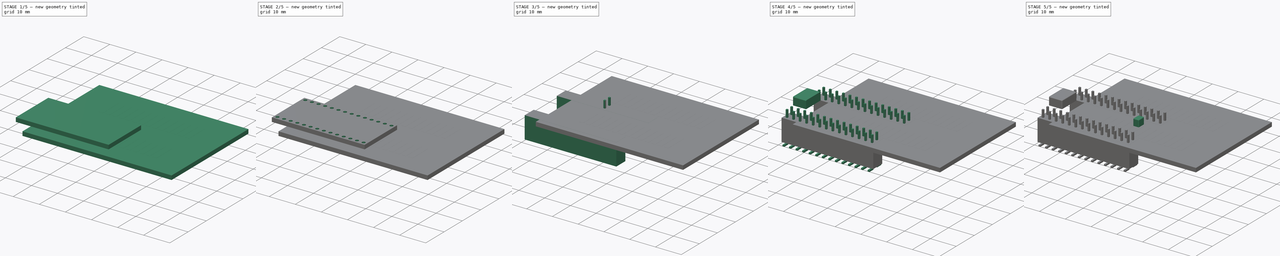
[diagram: build sequence overview — one tinted view per stage of 5, left to right]
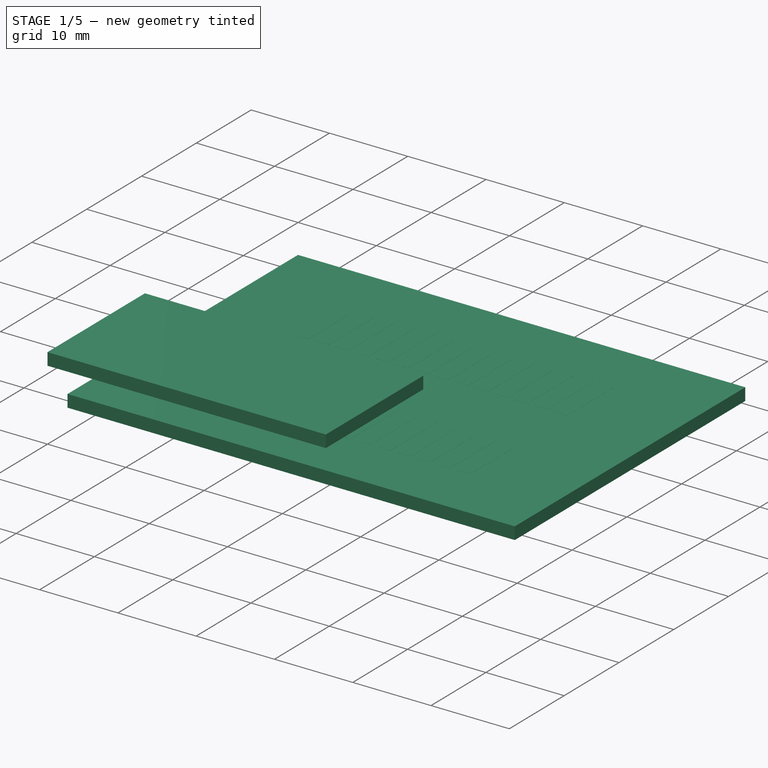
[diagram: stage 1 of 5 — iso view after this stage's code; geometry added in this stage tinted green]
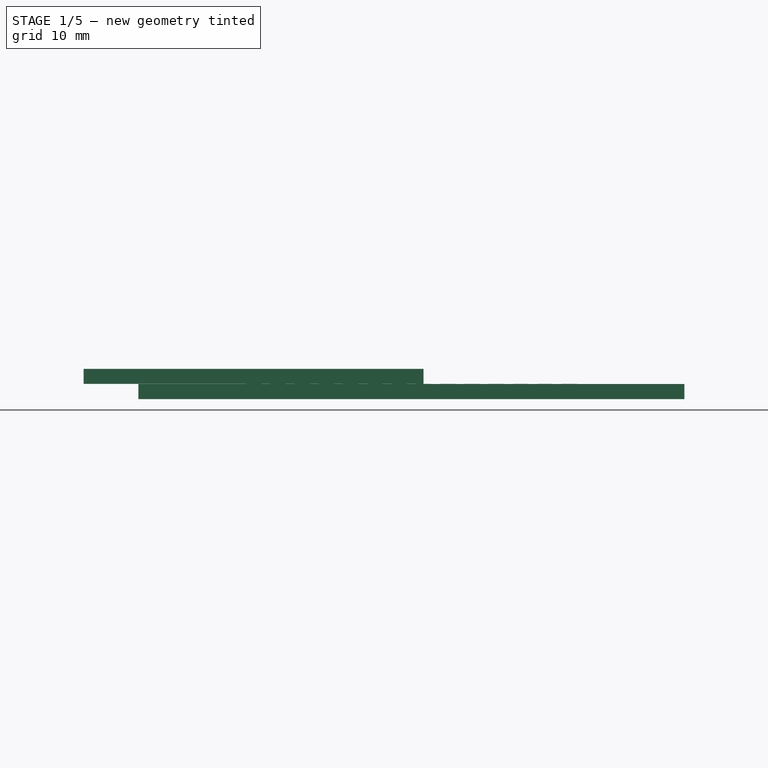
[diagram: stage 1 of 5 — front view after this stage's code; geometry added in this stage tinted green]
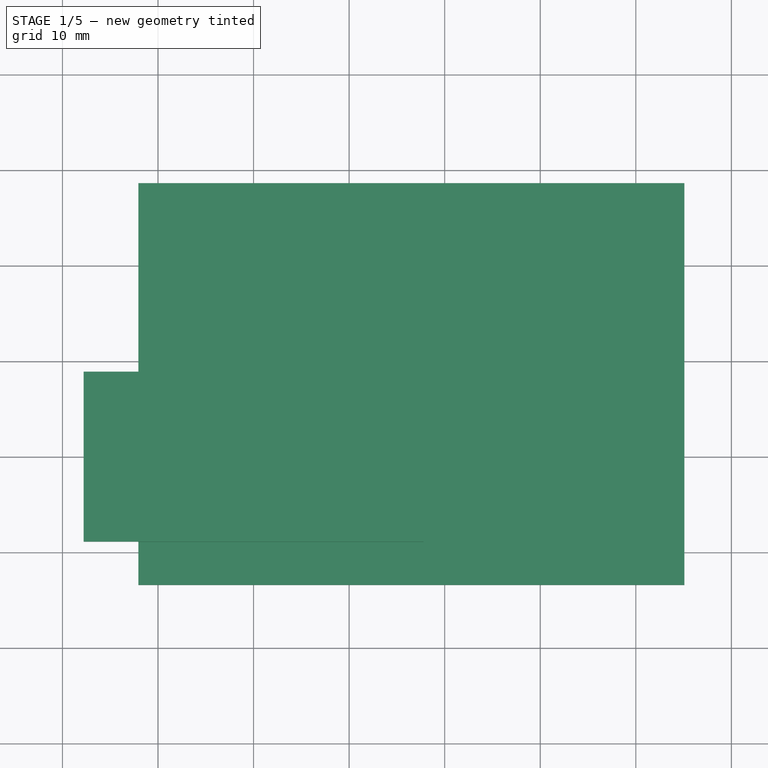
[diagram: stage 1 of 5 — top view after this stage's code; geometry added in this stage tinted green]
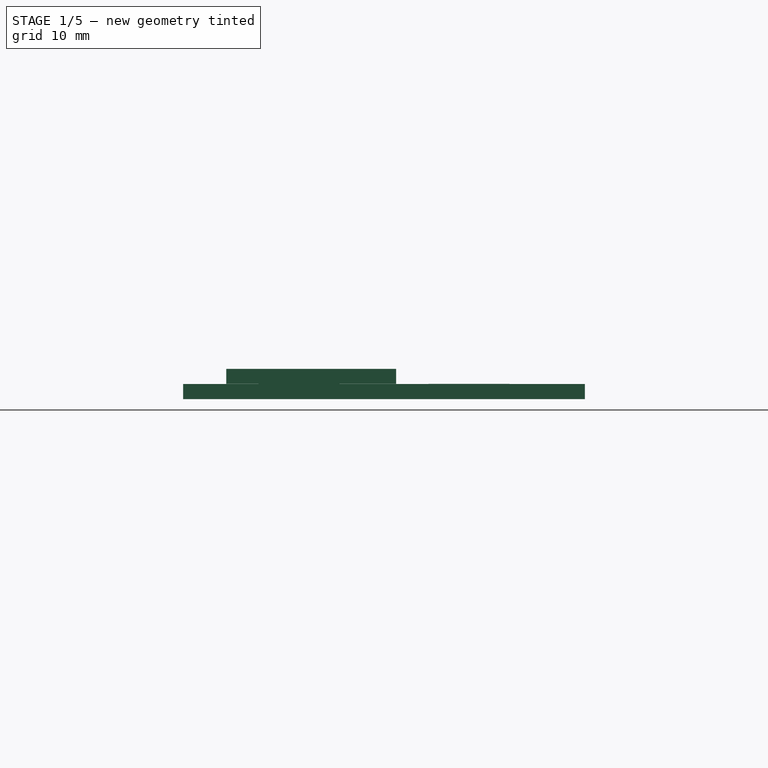
[diagram: stage 1 of 5 — right view after this stage's code; geometry added in this stage tinted green]
FCSTD DOCUMENT  (FreeCAD 0.17R10600 (Git))
Label: Teensy32_HM_FC017
License: All rights reserved
LicenseURL: http://en.wikipedia.org/wiki/All_rights_reserved
objects: Sketcher::SketchObject×6, PartDesign::Pad×6, PartDesign::Body×6, Part::FeaturePython×6, PartDesign::Fillet×4, Part::Feature×4, App::DocumentObjectGroup×2, Part::Cut×1
note: 39 computed .brp shape members not serialized (recipe doc carries the construction recipe); baked Part::Feature solids carry a one-line shape summary decoded from their .brp

FEATURE [Sketcher::SketchObject] Sketch
  MapMode = 5
  Support = -> [XY_Plane]
  sketch-geometry (4):
    g0: LineSegment StartX=-17.78 StartY=-8.89 StartZ=0 EndX=17.78 EndY=-8.89 EndZ=0
    g1: LineSegment StartX=17.78 StartY=-8.89 StartZ=0 EndX=17.78 EndY=8.89 EndZ=0
    g2: LineSegment StartX=17.78 StartY=8.89 StartZ=0 EndX=-17.78 EndY=8.89 EndZ=0
    g3: LineSegment StartX=-17.78 StartY=8.89 StartZ=0 EndX=-17.78 EndY=-8.89 EndZ=0
  constraints (12):
    c: Coincident(g0,g1)
    c: Coincident(g1,g2)
    c: Coincident(g2,g3)
    c: Coincident(g3,g0)
    c: Horizontal(g0)
    c: Horizontal(g2)
    c: Vertical(g1)
    c: Vertical(g3)
    c: Symmetric(g0,g2,g-1)
    c: Symmetric(g2,g1,g-2)
    c: DistanceX(g2,g2) = 35.56
    c: DistanceY(g3,g3) = 17.78
FEATURE [PartDesign::Pad] Pad
  Length = 1.57
  Length2 = 100
  Profile = -> Sketch
  Type = 0
FEATURE [Part::FeaturePython] Filk_lines  label="FrontSilk"  # a2plus imported part (geometry in sourceFile) (typed FeaturePython)
  fixedPosition = true
FEATURE [Part::FeaturePython] TopPads  # a2plus imported part (geometry in sourceFile) (typed FeaturePython)
  fixedPosition = true
FEATURE [Part::FeaturePython] newPCB  label="Pcb"  # a2plus imported part (geometry in sourceFile) (typed FeaturePython)
  fixedPosition = true
FEATURE [App::DocumentObjectGroup] Teensy32_Conn_fp
  Group = -> [Filk_lines,TopPads,newPCB]
FEATURE [Part::Feature] FusionAxisZ1  label="Z"
  shape: bbox 0.8 x 0.8 x 14 mm, 8 faces (baked)
FEATURE [Part::Feature] FusionAxisY1  label="Y"
  Placement = pos=(0,0,0.05) rot=(-1,0,0;1.5708rad)
  shape: bbox 0.8 x 14 x 0.8 mm, 8 faces (baked)
FEATURE [Part::Feature] FusionAxisX1  label="X"
  Placement = pos=(0,-0.05,0) rot=(0,1,0;1.5708rad)
  shape: bbox 14 x 0.8 x 0.8 mm, 8 faces (baked)
FEATURE [App::DocumentObjectGroup] axis
  Group = -> [FusionAxisZ1,FusionAxisY1,FusionAxisX1]
FEATURE [Part::Feature] Shape  label="Fusion"
  shape: bbox 36.26 x 24.48 x 13.9 mm, 1000 faces (baked)
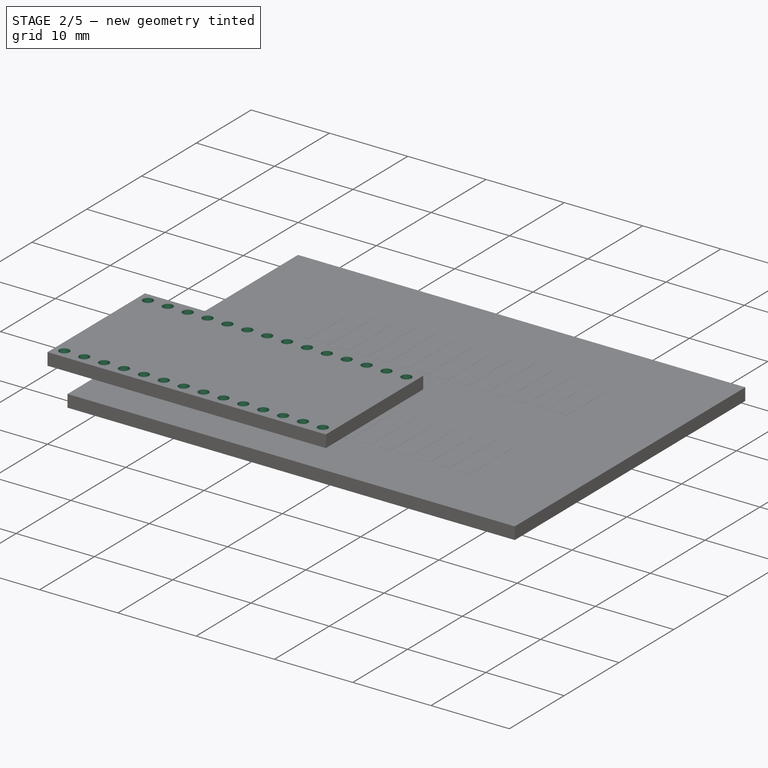
[diagram: stage 2 of 5 — iso view after this stage's code; geometry added in this stage tinted green]
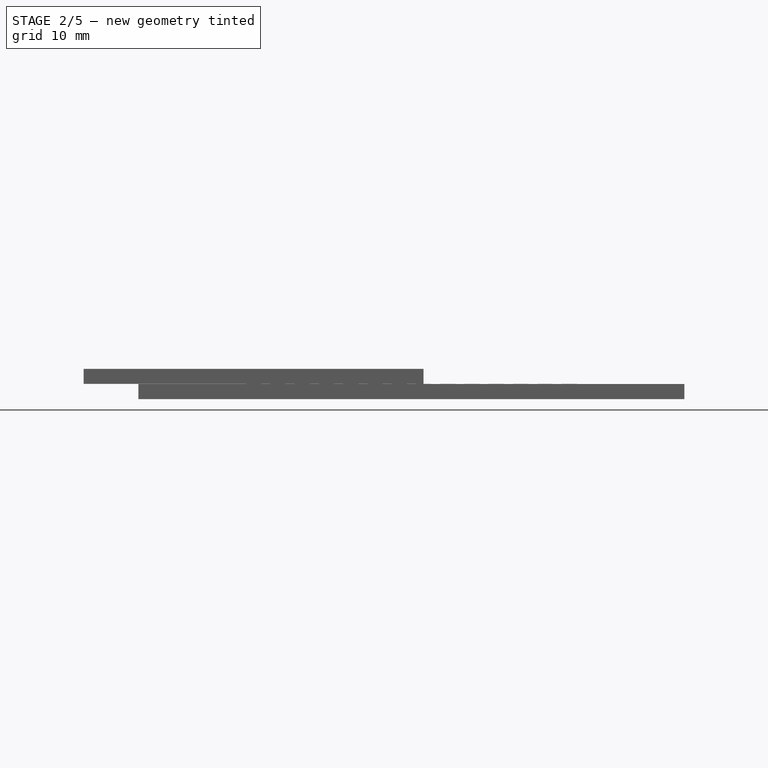
[diagram: stage 2 of 5 — front view after this stage's code; geometry added in this stage tinted green]
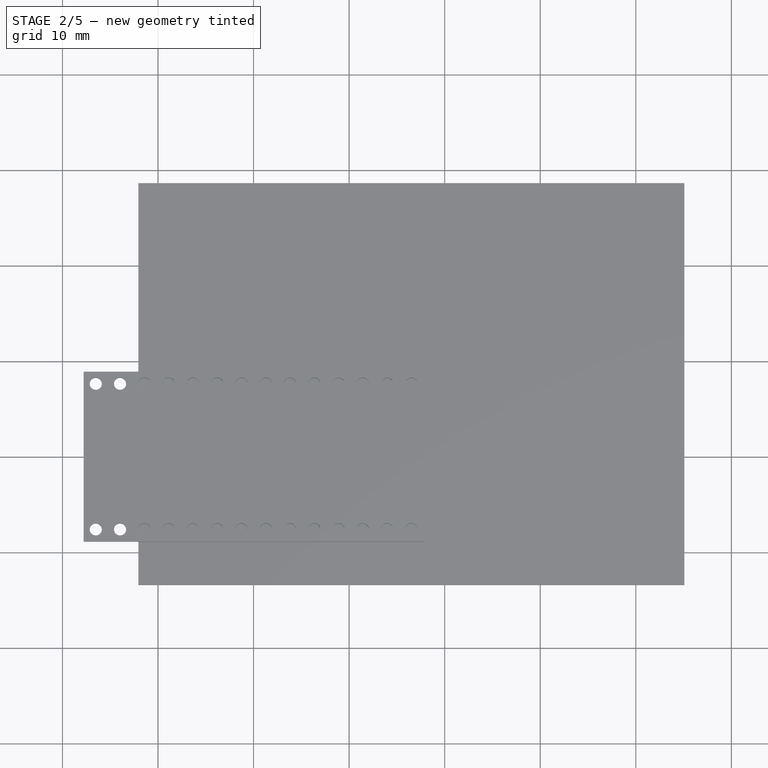
[diagram: stage 2 of 5 — top view after this stage's code; geometry added in this stage tinted green]
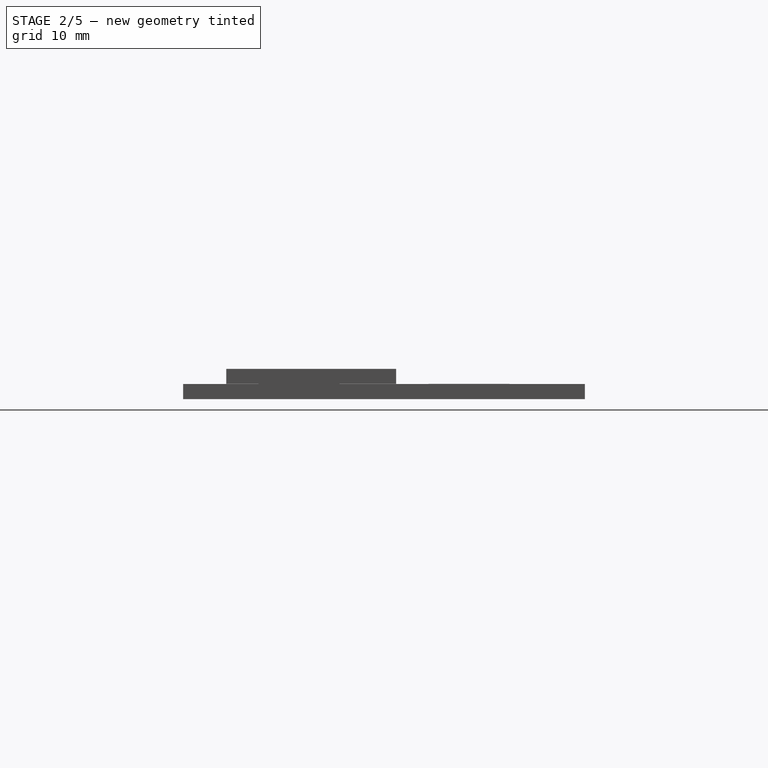
[diagram: stage 2 of 5 — right view after this stage's code; geometry added in this stage tinted green]
FEATURE [PartDesign::Body] Body  label="Grundplatte"
  Group = -> [Sketch,Pad]
  Origin = -> BodyOrigin
  Tip = -> Pad
FEATURE [Sketcher::SketchObject] Sketch001
  ExternalGeometry = -> [Pad]
  MapMode = 5
  Support = -> [XY_Plane001]
  sketch-geometry (3):
    g0: LineSegment [constr] StartX=-17.78 StartY=7.62 StartZ=0 EndX=-13.78 EndY=7.62 EndZ=0
    g1: LineSegment [constr] StartX=-16.51 StartY=8.89 StartZ=0 EndX=-16.51 EndY=4.89 EndZ=0
    g2: Circle CenterX=-16.51 CenterY=7.62 CenterZ=0 NormalX=0 NormalY=0 NormalZ=1 Radius=0.635
  constraints (11):
    c: Horizontal(g0)
    c: Vertical(g1)
    c: Distance(g-4,g0) = 1.27
    c: Distance(g-4,g1) = 1.27
    c: PointOnObject(g2,g1)
    c: PointOnObject(g2,g0)
    c: Radius(g2) = 0.635  'DurchmesserBohrungPin'
    c: PointOnObject(g0,g-3)
    c: PointOnObject(g1,g-4)
    c: DistanceX(g0,g0) = 4
    c: DistanceY(g1,g1) = 4
FEATURE [PartDesign::Pad] Pad001  label="PinLoch"
  Length = 10
  Length2 = 10
  Profile = -> Sketch001
  Type = 4
FEATURE [PartDesign::Body] Body001  label="AbzugPinLoecher"
  Group = -> [Sketch001,Pad001]
  Origin = -> Body001Origin
FEATURE [Part::FeaturePython] Array  # Draft array (typed FeaturePython)
  Angle = 360
  ArrayType = 0
  Axis = (0,0,1)
  Base = -> Pad001
  Center = (0,0,0)
  Fuse = false
  IntervalAxis = (0,0,0)
  IntervalX = (2.54,0,0)
  IntervalY = (0,-15.24,0)
  IntervalZ = (0,0,0)
  NumberPolar = 1
  NumberX = 14
  NumberY = 2
  NumberZ = 1
FEATURE [Part::Cut] Cut
  Base = -> Body
  Tool = -> Array
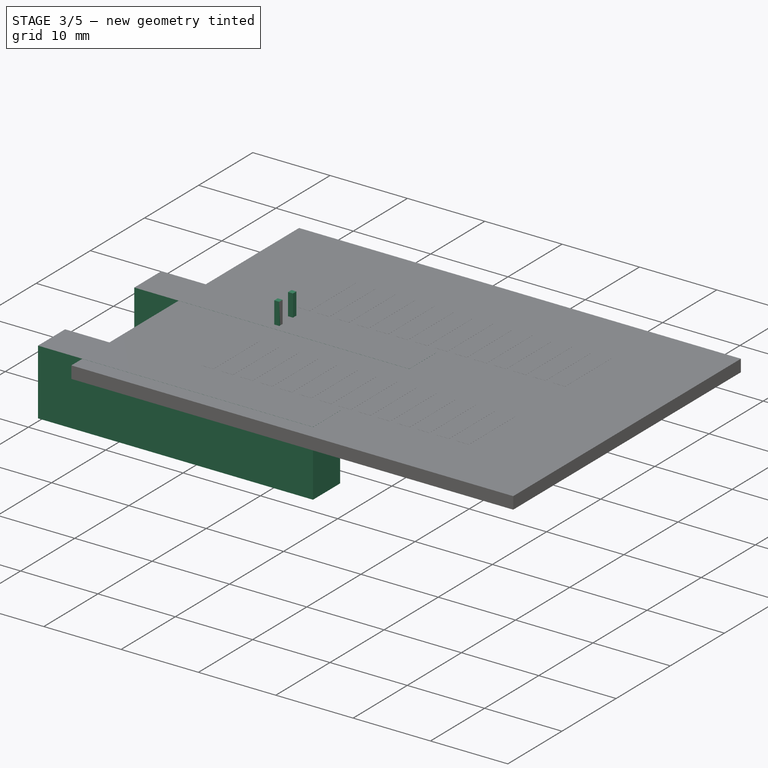
[diagram: stage 3 of 5 — iso view after this stage's code; geometry added in this stage tinted green]
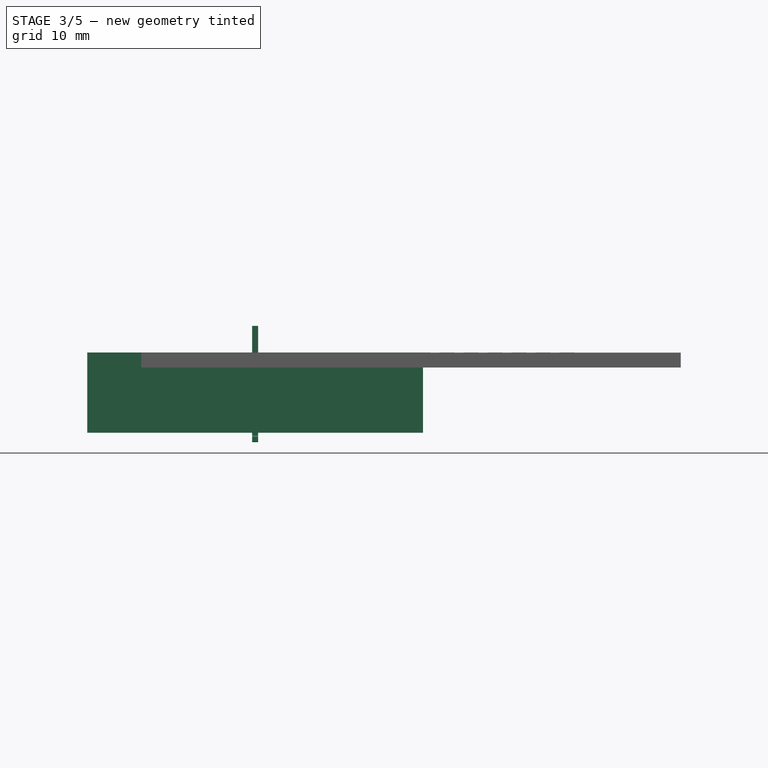
[diagram: stage 3 of 5 — front view after this stage's code; geometry added in this stage tinted green]
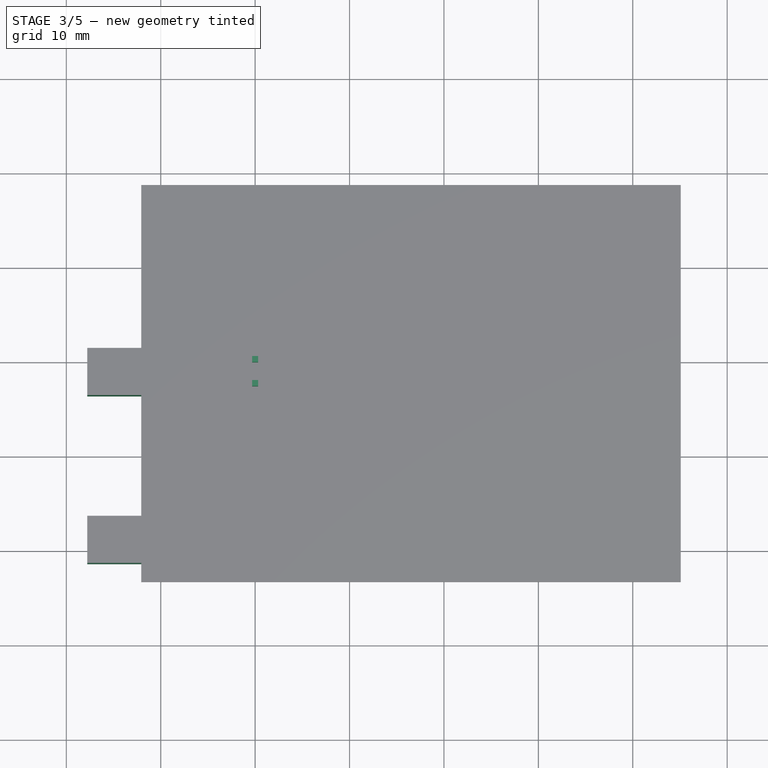
[diagram: stage 3 of 5 — top view after this stage's code; geometry added in this stage tinted green]
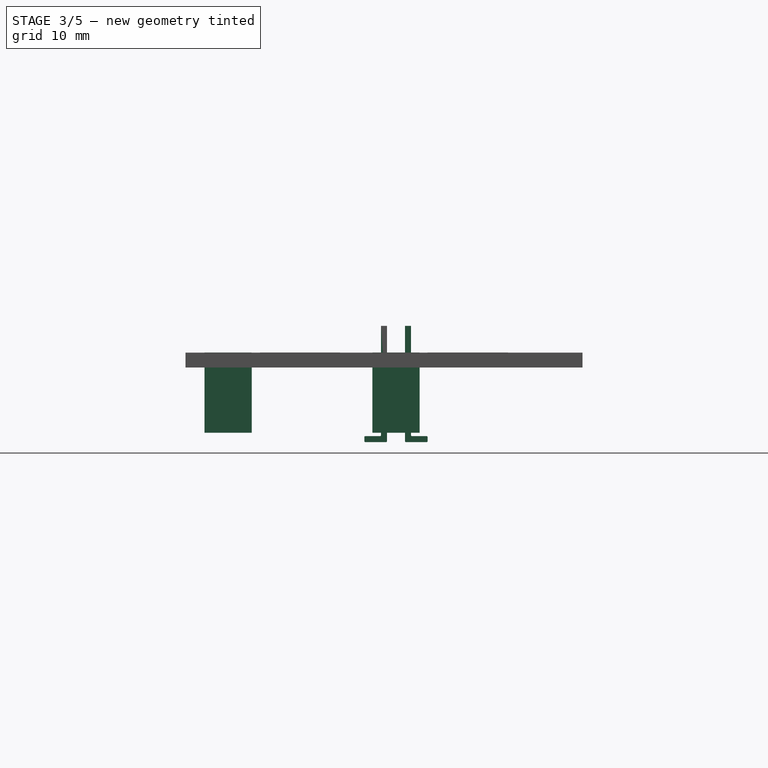
[diagram: stage 3 of 5 — right view after this stage's code; geometry added in this stage tinted green]
FEATURE [PartDesign::Body] Body002  label="USB_Buchse"
  Group = -> [Sketch002,Pad002,Fillet,Fillet003]
  Origin = -> Body002Origin
  Tip = -> Fillet003
FEATURE [Sketcher::SketchObject] Sketch004
  ExternalGeometry = -> [Cut]
  MapMode = 5
  Placement = pos=(0,0,0) rot=(0.57735,0.57735,0.57735;2.0944rad)
  Support = -> [YZ_Plane004]
  sketch-geometry (17):
    g0: LineSegment StartX=7.3025 StartY=2.82 StartZ=0 EndX=7.9375 EndY=2.82 EndZ=0
    g1: LineSegment StartX=7.9375 StartY=2.82 StartZ=0 EndX=7.9375 EndY=-1 EndZ=0
    g2: LineSegment StartX=7.9375 StartY=-9.5 StartZ=0 EndX=5.54 EndY=-9.5 EndZ=0
    g3: LineSegment StartX=5.54 StartY=-8.865 StartZ=0 EndX=7.3025 EndY=-8.865 EndZ=0
    g4: LineSegment StartX=7.3025 StartY=-8.865 StartZ=0 EndX=7.3025 EndY=2.82 EndZ=0
    g5: LineSegment [constr] StartX=7.62 StartY=7.28885 StartZ=0 EndX=7.62 EndY=-2.73094 EndZ=0
    g6: LineSegment StartX=5.54 StartY=-8.865 StartZ=0 EndX=5.54 EndY=-9.5 EndZ=0
    g7: LineSegment StartX=10.4775 StartY=-8.865 StartZ=0 EndX=10.4775 EndY=2.82 EndZ=0
    g8: LineSegment StartX=10.4775 StartY=2.82 StartZ=0 EndX=9.8425 EndY=2.82 EndZ=0
    g9: LineSegment StartX=9.8425 StartY=2.82 StartZ=0 EndX=9.8425 EndY=-1 EndZ=0
    g10: LineSegment StartX=12.24 StartY=-8.865 StartZ=0 EndX=10.4775 EndY=-8.865 EndZ=0
    g11: LineSegment StartX=12.24 StartY=-8.865 StartZ=0 EndX=12.24 EndY=-9.5 EndZ=0
    g12: LineSegment StartX=9.8425 StartY=-9.5 StartZ=0 EndX=12.24 EndY=-9.5 EndZ=0
    g13: LineSegment StartX=7.9375 StartY=-6.5 StartZ=0 EndX=9.8425 EndY=-6.5 EndZ=0
    g14: LineSegment StartX=7.9375 StartY=-1 StartZ=0 EndX=9.8425 EndY=-1 EndZ=0
    g15: LineSegment StartX=9.8425 StartY=-6.5 StartZ=0 EndX=9.8425 EndY=-9.5 EndZ=0
    g16: LineSegment StartX=7.9375 StartY=-6.5 StartZ=0 EndX=7.9375 EndY=-9.5 EndZ=0
  constraints (45):
    c: Coincident(g0,g1)
    c: Vertical(g1)
    c: Coincident(g16,g2)
    c: Horizontal(g2)
    c: Horizontal(g3)
    c: Coincident(g3,g4)
    c: Coincident(g4,g0)
    c: Vertical(g4)
    c: Vertical(g5)
    c: Distance(g5,g-4) = 1.27
    c: Symmetric(g0,g0,g5)
    c: DistanceX(g0,g0) = 0.635
    c: Distance(g0,g-3) = 1.25
    c: Coincident(g6,g3)
    c: Coincident(g6,g2)
    c: Vertical(g6)
    c: Distance(g16,g-5) = 9.5
    c: DistanceY(g6,g6) = 0.635
    c: Horizontal(g8)
    c: Coincident(g8,g9)
    c: Vertical(g9)
    c: Coincident(g15,g12)
    c: Horizontal(g12)
    c: Horizontal(g10)
    c: Coincident(g10,g7)
    c: Coincident(g7,g8)
    c: Vertical(g7)
    c: Coincident(g11,g10)
    c: Coincident(g11,g12)
    c: Vertical(g11)
    c: Horizontal(g13)
    c: Horizontal(g14)
    c: Tangent(g9,g15)
    c: Coincident(g14,g9)
    c: Tangent(g1,g16)
    c: Coincident(g14,g1)
    c: Coincident(g13,g16)
    c: Coincident(g13,g15)
    c: Distance(g13,g2) = 3
    c: Symmetric(g11,g2,g-4)
    c: Tangent(g3,g10)
    c: Distance(g2,g-4) = 3.35
    c: Symmetric(g0,g8,g-4)
    c: Distance(g9,g-5) = 1
    c: Symmetric(g7,g0,g-4)
FEATURE [PartDesign::Pad] Pad004
  Length = 0.64
  Length2 = 100
  Midplane = true
  Placement = pos=(0,0,0) rot=(0.57735,0.57735,0.57735;2.0944rad)
  Profile = -> Sketch004
  Type = 0
FEATURE [Sketcher::SketchObject] Sketch005
  ExternalGeometry = -> [Cut]
  MapMode = 5
  Placement = pos=(0,0,0) rot=(0.57735,0.57735,0.57735;2.0944rad)
  Support = -> [YZ_Plane005]
  sketch-geometry (4):
    g0: LineSegment StartX=-11.39 StartY=0 StartZ=0 EndX=-6.39 EndY=0 EndZ=0
    g1: LineSegment StartX=-6.39 StartY=0 StartZ=0 EndX=-6.39 EndY=-8.5 EndZ=0
    g2: LineSegment StartX=-6.39 StartY=-8.5 StartZ=0 EndX=-11.39 EndY=-8.5 EndZ=0
    g3: LineSegment StartX=-11.39 StartY=-8.5 StartZ=0 EndX=-11.39 EndY=0 EndZ=0
  constraints (12):
    c: Coincident(g0,g1)
    c: Coincident(g1,g2)
    c: Coincident(g2,g3)
    c: Coincident(g3,g0)
    c: Horizontal(g0)
    c: Horizontal(g2)
    c: Vertical(g1)
    c: Vertical(g3)
    c: PointOnObject(g0,g-5)
    c: DistanceX(g2,g2) = 5
    c: Symmetric(g2,g1,g-4)
    c: DistanceY(g3,g3) = 8.5
FEATURE [PartDesign::Pad] Pad005
  Length = 35.56
  Length2 = 100
  Midplane = true
  Placement = pos=(0,0,0) rot=(0.57735,0.57735,0.57735;2.0944rad)
  Profile = -> Sketch005
  Type = 0
FEATURE [PartDesign::Body] Body005
  Group = -> [Sketch005,Pad005]
  Origin = -> Body005Origin
  Tip = -> Pad005
FEATURE [PartDesign::Fillet] Fillet004
  Base = -> Pad004 [Edge23,Edge26,Edge29,Edge32,Edge44,Edge1,Edge2,Edge41]
  BaseFeature = -> Pad004
  Placement = pos=(0,0,0) rot=(0.57735,0.57735,0.57735;2.0944rad)
  Radius = 0.1
FEATURE [Part::FeaturePython] Array002  # Draft array (typed FeaturePython)
  Angle = 360
  ArrayType = 0
  Axis = (0,0,1)
  Base = -> Pad005
  Center = (0,0,0)
  Fuse = false
  IntervalAxis = (0,0,0)
  IntervalX = (1,0,0)
  IntervalY = (0,17.78,0)
  IntervalZ = (0,0,0)
  NumberPolar = 1
  NumberX = 1
  NumberY = 2
  NumberZ = 1
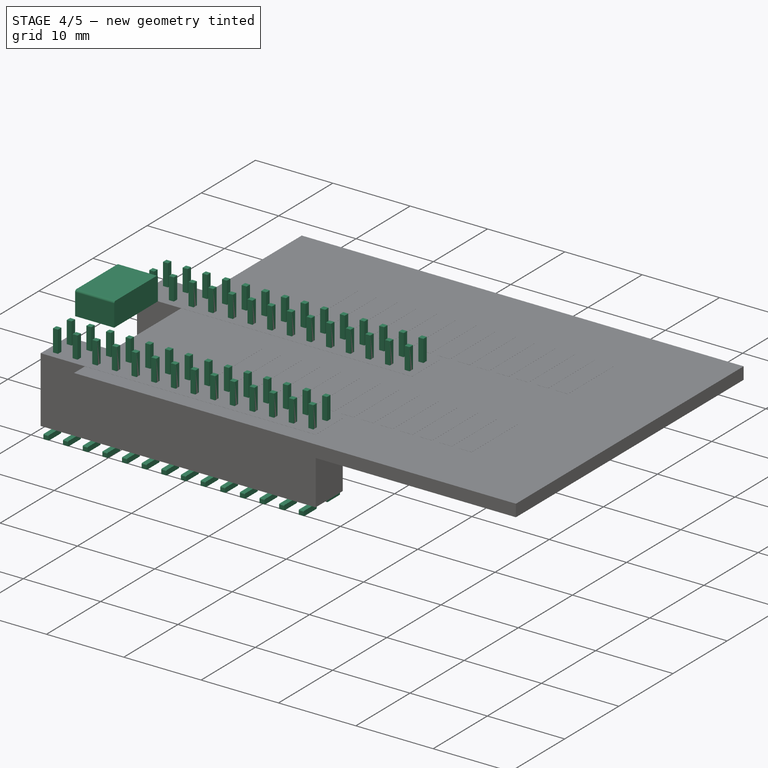
[diagram: stage 4 of 5 — iso view after this stage's code; geometry added in this stage tinted green]
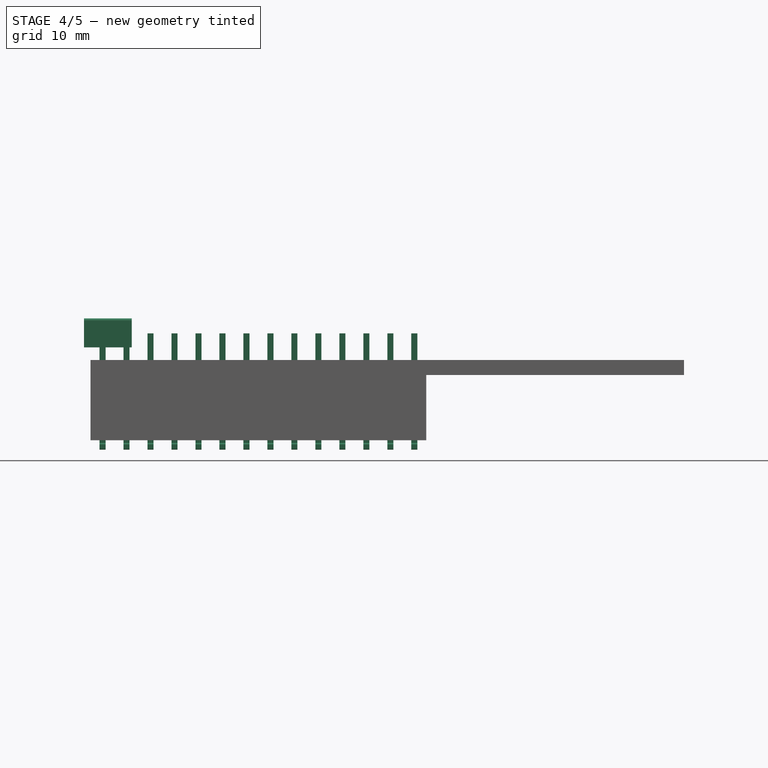
[diagram: stage 4 of 5 — front view after this stage's code; geometry added in this stage tinted green]
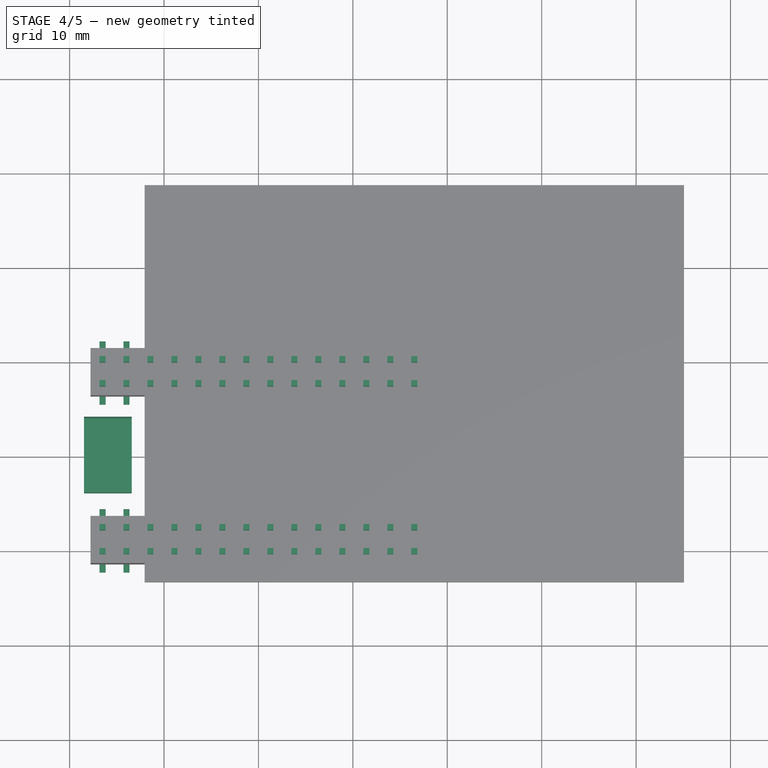
[diagram: stage 4 of 5 — top view after this stage's code; geometry added in this stage tinted green]
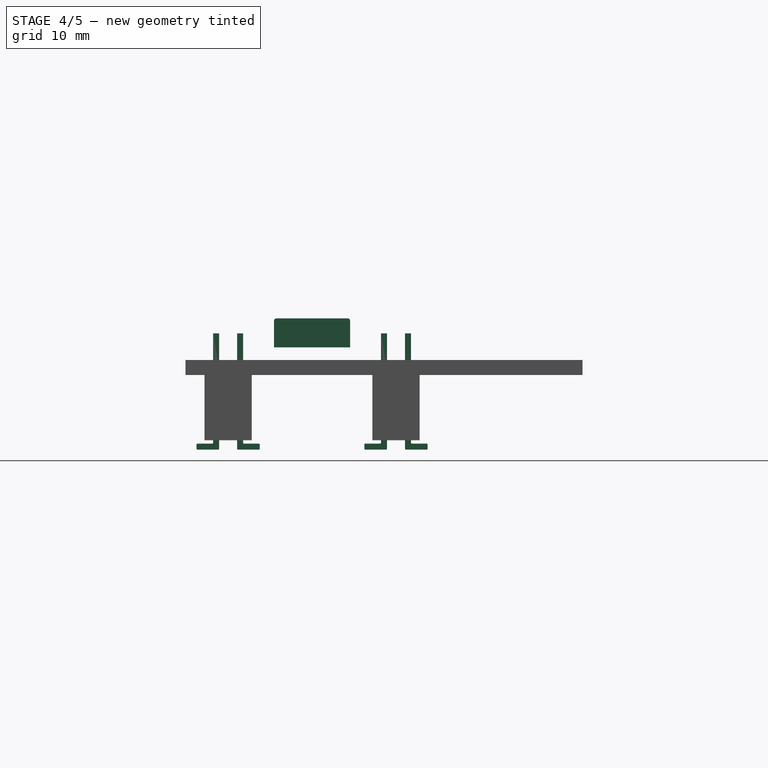
[diagram: stage 4 of 5 — right view after this stage's code; geometry added in this stage tinted green]
FEATURE [Sketcher::SketchObject] Sketch002
  ExternalGeometry = -> [Cut]
  MapMode = 5
  Placement = pos=(0,0,0) rot=(1,0,0;1.5708rad)
  Support = -> [XZ_Plane002]
  sketch-geometry (4):
    g0: LineSegment StartX=-18.48 StartY=4.40437 StartZ=0 EndX=-13.42 EndY=4.40437 EndZ=0
    g1: LineSegment StartX=-13.42 StartY=4.40437 StartZ=0 EndX=-13.42 EndY=1.33437 EndZ=0
    g2: LineSegment StartX=-13.42 StartY=1.33437 StartZ=0 EndX=-18.48 EndY=1.33437 EndZ=0
    g3: LineSegment StartX=-18.48 StartY=1.33437 StartZ=0 EndX=-18.48 EndY=4.40437 EndZ=0
  constraints (12):
    c: Coincident(g0,g1)
    c: Coincident(g1,g2)
    c: Coincident(g2,g3)
    c: Coincident(g3,g0)
    c: Horizontal(g0)
    c: Horizontal(g2)
    c: Vertical(g1)
    c: Vertical(g3)
    c: DistanceY(g3,g3) = 3.07
    c: DistanceX(g0,g0) = 5.06
    c: Distance(g2,g-3) = 0.23563
    c: Distance(g2,g-4) = 0.7
FEATURE [PartDesign::Pad] Pad002
  Length = 8.06
  Length2 = 100
  Midplane = true
  Placement = pos=(0,0,0) rot=(1,0,0;1.5708rad)
  Profile = -> Sketch002
  Type = 0
FEATURE [PartDesign::Body] Body003  label="ResetSchalter"
  Group = -> [Sketch003,Pad003,Fillet002]
  Origin = -> Body003Origin
  Tip = -> Fillet002
FEATURE [PartDesign::Fillet] Fillet
  Base = -> Pad002 [Edge3,Edge4]
  BaseFeature = -> Pad002
  Placement = pos=(0,0,0) rot=(1,0,0;1.5708rad)
  Radius = 0.25
FEATURE [PartDesign::Body] Body004  label="Pins"
  Group = -> [Sketch004,Pad004,Fillet004]
  Origin = -> Body004Origin
  Placement = pos=(-16.51,0,0) rot=(0,0,1;0rad)
  Tip = -> Fillet004
FEATURE [Part::FeaturePython] Array001  # Draft array (typed FeaturePython)
  Angle = 360
  ArrayType = 0
  Axis = (0,0,1)
  Base = -> Fillet004
  Center = (0,0,0)
  Fuse = false
  IntervalAxis = (0,0,0)
  IntervalX = (2.54,0,0)
  IntervalY = (0,-17.78,0)
  IntervalZ = (0,0,0)
  NumberPolar = 1
  NumberX = 14
  NumberY = 2
  NumberZ = 1
  Placement = pos=(-16.51,0,0) rot=(0,0,1;0rad)
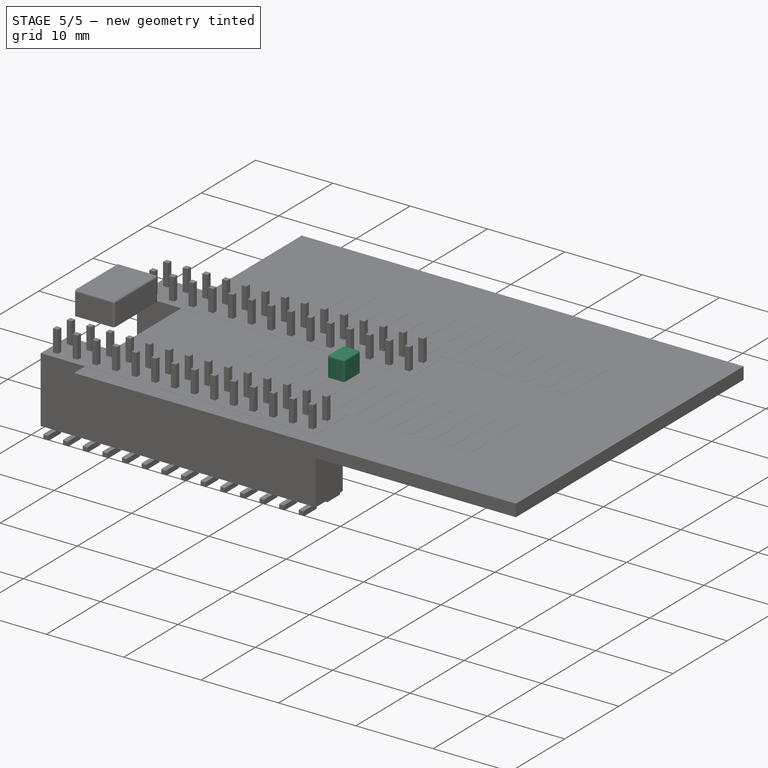
[diagram: stage 5 of 5 — iso view after this stage's code; geometry added in this stage tinted green]
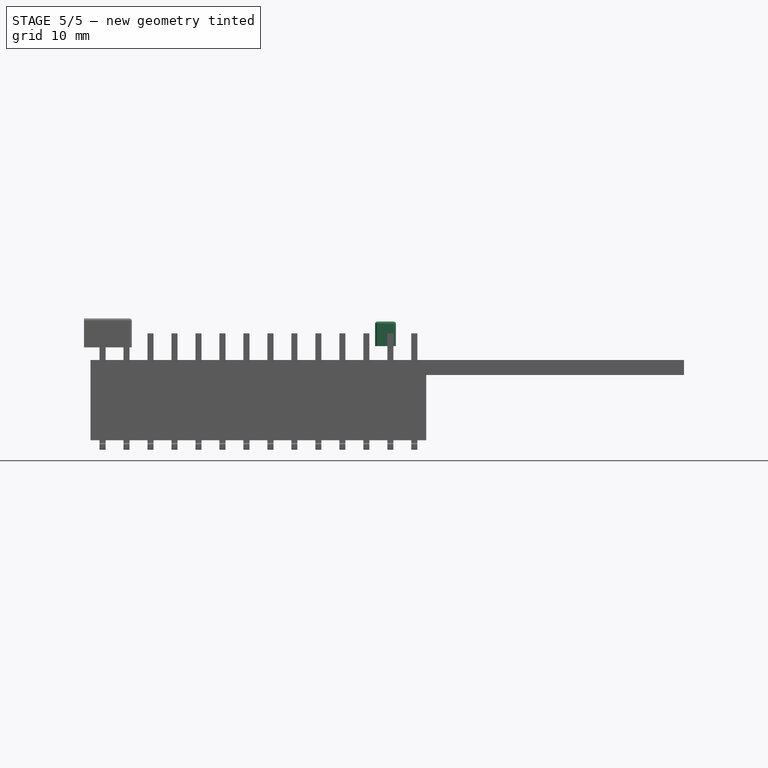
[diagram: stage 5 of 5 — front view after this stage's code; geometry added in this stage tinted green]
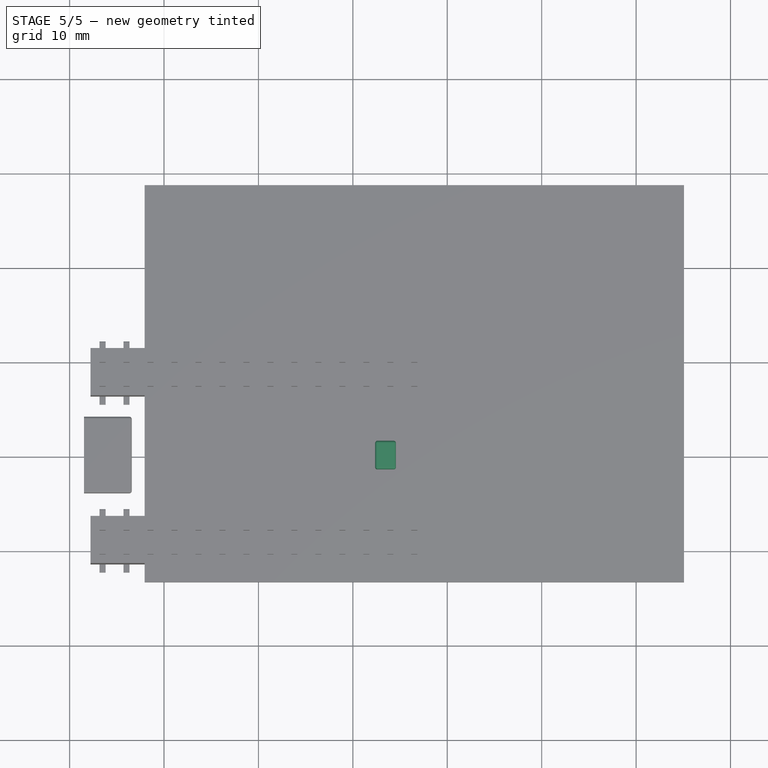
[diagram: stage 5 of 5 — top view after this stage's code; geometry added in this stage tinted green]
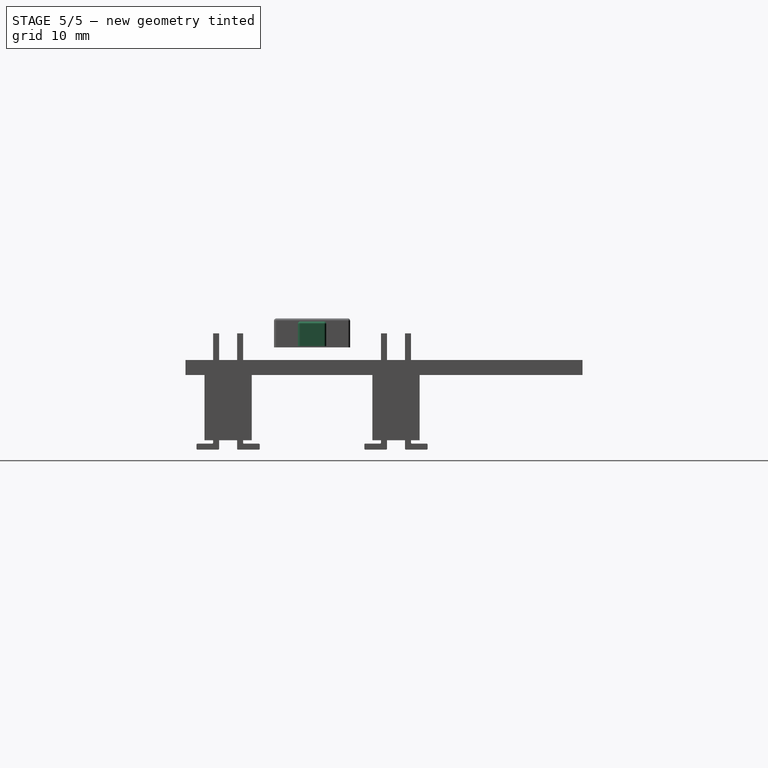
[diagram: stage 5 of 5 — right view after this stage's code; geometry added in this stage tinted green]
FEATURE [Sketcher::SketchObject] Sketch003
  ExternalGeometry = -> [Cut]
  MapMode = 5
  Placement = pos=(0,0,0) rot=(1,0,0;1.5708rad)
  Support = -> [XZ_Plane003]
  sketch-geometry (6):
    g0: LineSegment StartX=12.36 StartY=4.07 StartZ=0 EndX=14.56 EndY=4.07 EndZ=0
    g1: LineSegment StartX=14.56 StartY=4.07 StartZ=0 EndX=14.56 EndY=1.47 EndZ=0
    g2: LineSegment StartX=14.56 StartY=1.47 StartZ=0 EndX=12.36 EndY=1.47 EndZ=0
    g3: LineSegment StartX=12.36 StartY=1.47 StartZ=0 EndX=12.36 EndY=4.07 EndZ=0
    g4: LineSegment [constr] StartX=-16.51 StartY=17.8632 StartZ=0 EndX=-16.51 EndY=-14.4561 EndZ=0
    g5: LineSegment [constr] StartX=13.46 StartY=11.2357 StartZ=0 EndX=13.46 EndY=-7.60857 EndZ=0
  constraints (16):
    c: Coincident(g0,g1)
    c: Coincident(g1,g2)
    c: Coincident(g2,g3)
    c: Coincident(g3,g0)
    c: Horizontal(g0)
    c: Horizontal(g2)
    c: Vertical(g1)
    c: Vertical(g3)
    c: DistanceX(g0,g0) = 2.2
    c: DistanceY(g1,g1) = 2.6
    c: Distance(g0,g-3) = 2.5
    c: Vertical(g4)
    c: DistanceX(g-2,g4) = -16.51
    c: Vertical(g5)
    c: Distance(g5,g4) = 29.97
    c: Symmetric(g0,g0,g5)
FEATURE [PartDesign::Pad] Pad003
  Length = 3
  Length2 = 100
  Midplane = true
  Placement = pos=(0,0,0) rot=(1,0,0;1.5708rad)
  Profile = -> Sketch003
  Type = 0
FEATURE [PartDesign::Fillet] Fillet002
  Base = -> Pad003 [Edge4,Edge2,Edge1,Edge3,Edge12,Edge7,Edge6,Edge11]
  BaseFeature = -> Pad003
  Placement = pos=(0,0,0) rot=(1,0,0;1.5708rad)
  Radius = 0.25
FEATURE [PartDesign::Fillet] Fillet003
  Base = -> Fillet [Edge4]
  BaseFeature = -> Fillet
  Placement = pos=(0,0,0) rot=(1,0,0;1.5708rad)
  Radius = 0.25
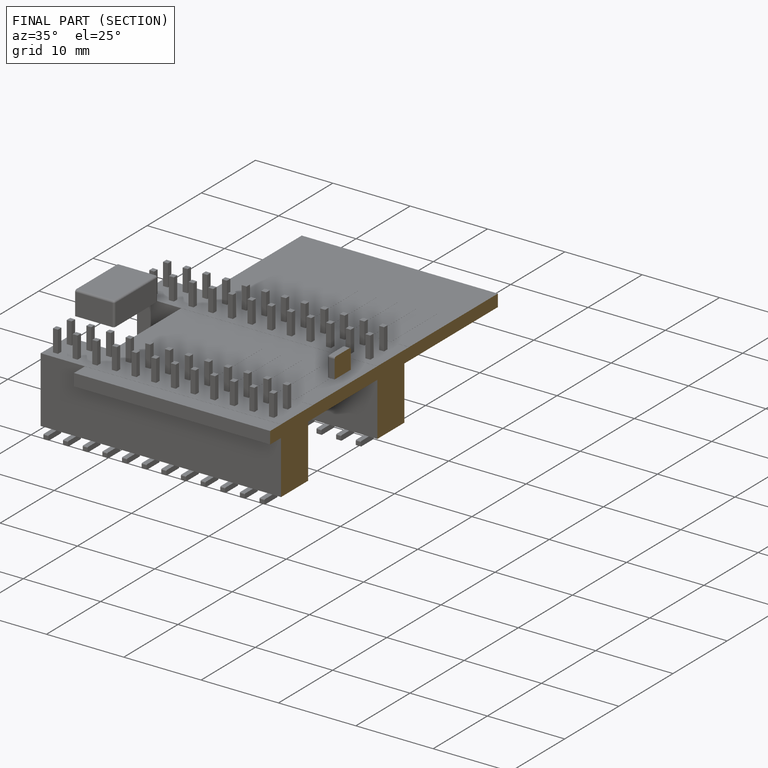
[diagram: finished part — half-section view (interior)]
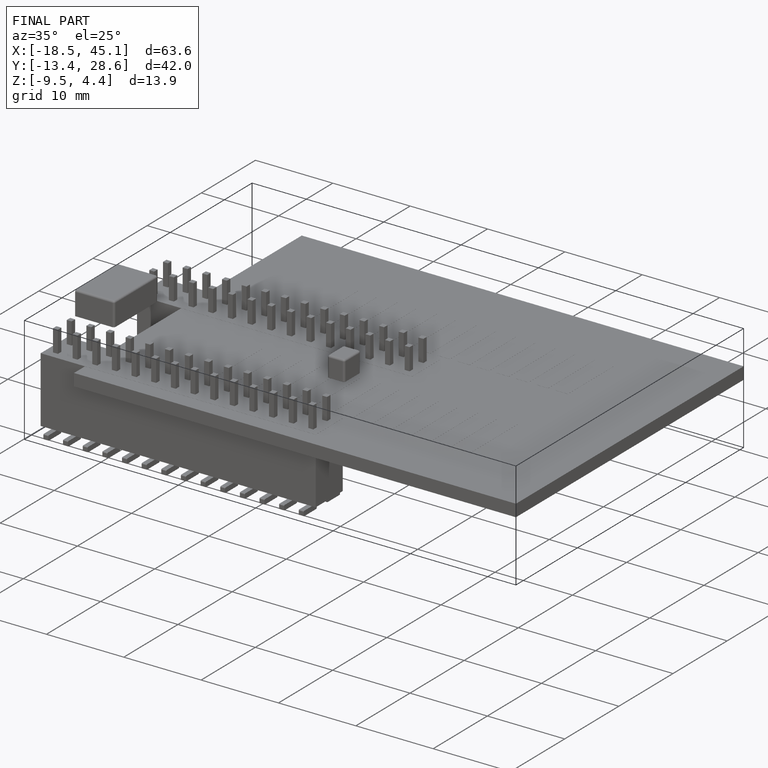
[diagram: finished part — iso view with bounding-box wireframe]
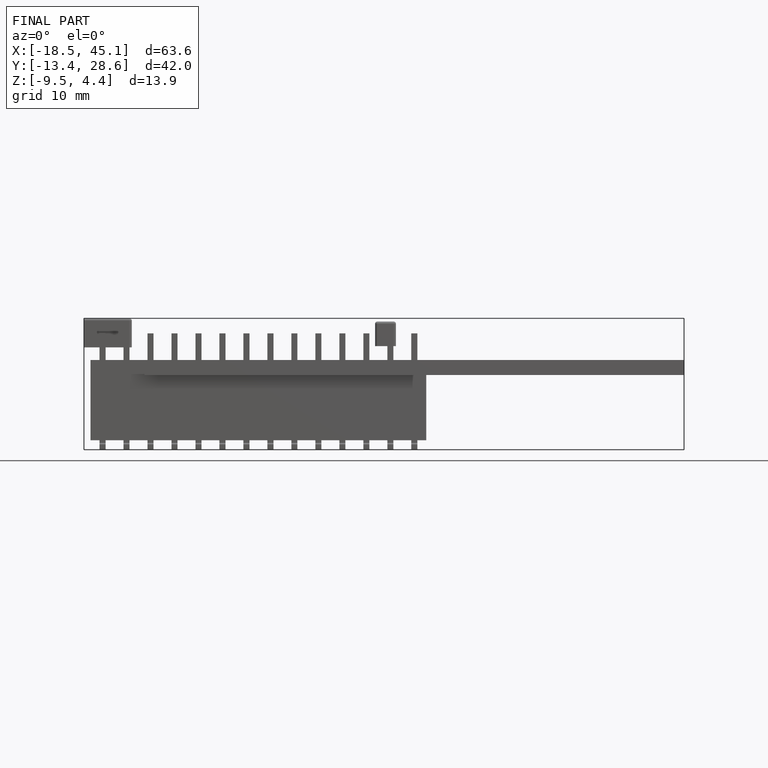
[diagram: finished part — front view with bounding-box wireframe]
